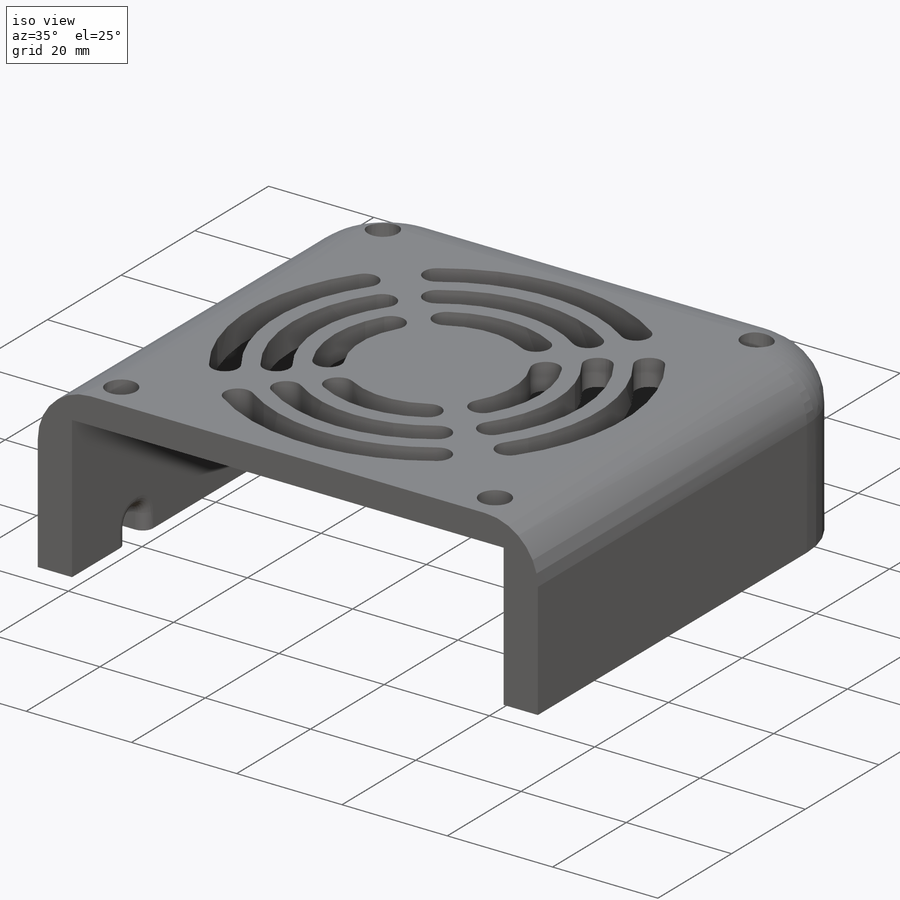
[diagram: iso view]
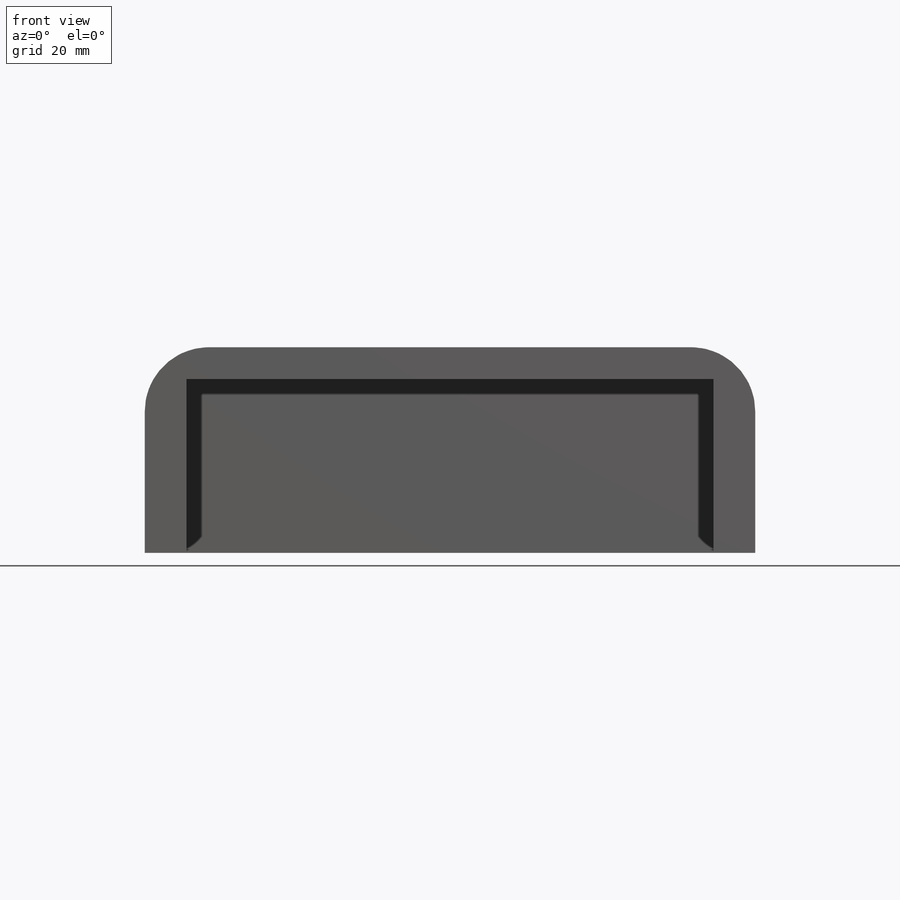
[diagram: front view]
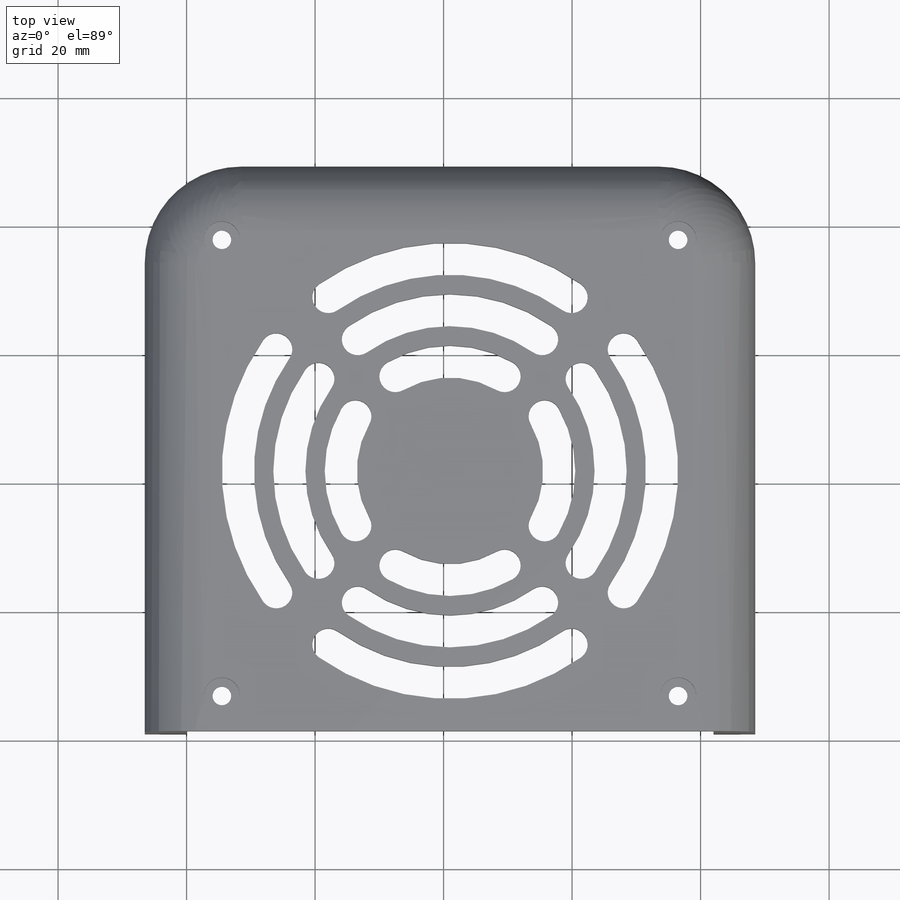
[diagram: top view]
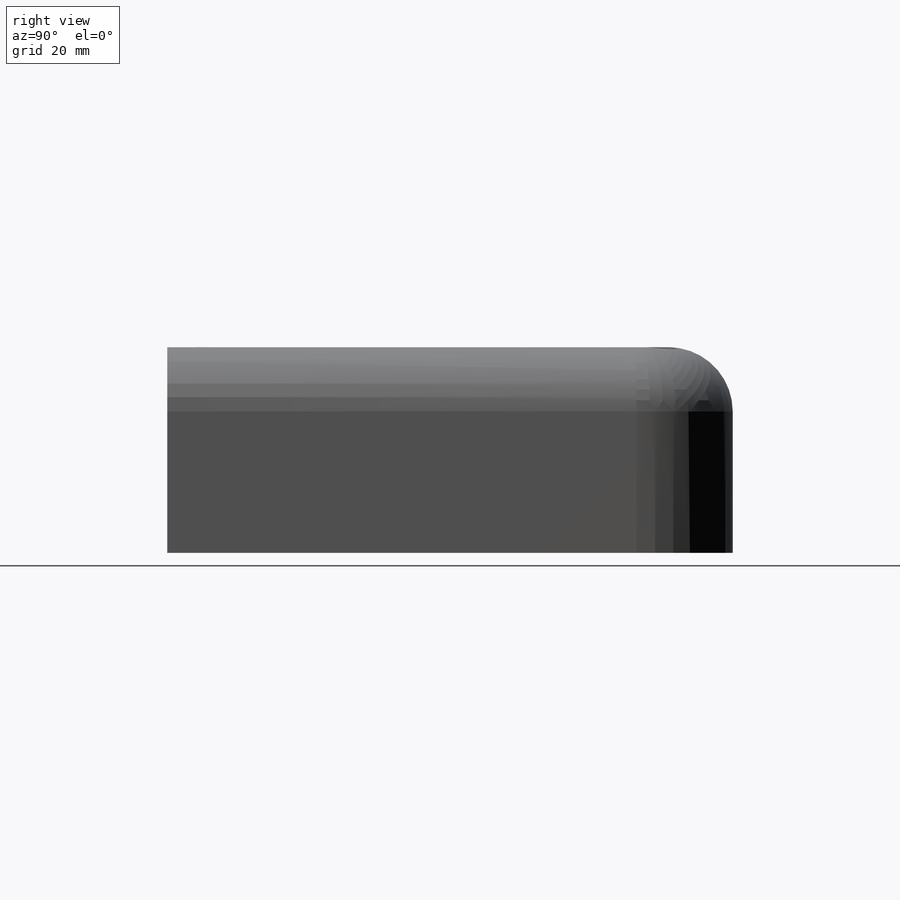
[diagram: right view]
SOLIDWORKS PART (.sldprt)
format: sldprt  version: not decoded by parser v0  size: 466,944 bytes
history: native  units: mm
features: sketch x7, cut_extrude x4, fillet x4, plane x3, extrude x3, material x1, pattern_circular x1 (+9 scaffold rows collapsed)
feature tree (32):
  scaffold x9  (default folders/planes/origin — collapsed)
  material  "Material <sin especificar>"
  plane  "Alzado"
  plane  "Planta"
  plane  "Vista lateral"
  sketch  "Croquis1"  dims[c1.D3=3.2mm c1.D5=15.0mm c1.D6=15.0mm c1.D1=80.0mm c1.D2=71.0mm c2.D1=7.0mm c2.D4=6.5mm c2.D5=6.5mm c3.D1=82.0mm c3.D7=7.0mm c3.D8=2.0mm c3.D4=2.0mm c3.D5=6.5mm c4.D8=6.5mm c4.D4=7.0mm]
  extrude  "Saliente-Extruir1"  Depth=27mm
  sketch  "Croquis4"  dims[D2=15.0mm D1=95.0mm]
  extrude  "Saliente-Extruir3"  Depth=5mm
  sketch  "Croquis5"  dims[D2=2.9mm D3=70.0mm D1=71.0mm]
  cut_extrude  "Cortar-Extruir2"  Depth=13.2mm
  sketch  "Croquis6"  dims[D1=5.65mm D2=5.65mm]
  cut_extrude  "Cortar-Extruir3"  Depth=3.1mm
  fillet  "Redondeo3"  Radius=10mm
  sketch  "Croquis7"  dims[D1=14.0mm D2=19.0mm D3=5.0mm]
  cut_extrude  "Cortar-Extruir4"  [1 undecoded]
  fillet  "Redondeo4"  Radius=2mm
  fillet  "Redondeo5"  Radius=2mm
  fillet  "Redondeo6"  Radius=2mm
  sketch  "Croquis9"  dims[D1=10.0mm]
  extrude  "Saliente-Extruir4"  Depth=1mm
  sketch  "Croquis11"  dims[c1.D2=2.9mm c1.D3=71.0mm c1.D1=71.0mm c2.D2=~52.823728mm c2.D3=~45.376151mm c2.D4=~37.627382mm c2.D5=~27.876235mm c2.D6=~18.313526mm c2.D1=71.0mm c3.D4=5.0mm c3.D5=58.0mm c3.D6=50.0mm c3.D7=42.0mm c3.D8=34.0mm c3.D9=40.0deg c3.D10=45.0deg c3.D11=50.0deg c3.D2=5.0mm c3.D3=3.0mm c4.D4=5.0mm c4.D5=3.0mm c4.D6=5.0mm c4.D7=14.5mm c5.D7=30.0deg c5.D8=22.5mm c6.D8=35.0deg c6.D9=~20.216509mm c7.D9=35.0deg]
  cut_extrude  "Cortar-Extruir5"  Depth=10mm
  pattern_circular  "MatrizC2"  Count=4 Angle=360deg
decode coverage: 18 of 19 modeling features carry decoded parameters
note: ~ marks probable driven/reference dimensions
note: 1 parameter value undecoded
note: suppression state not decoded; provenance and decode notes live in map.json
